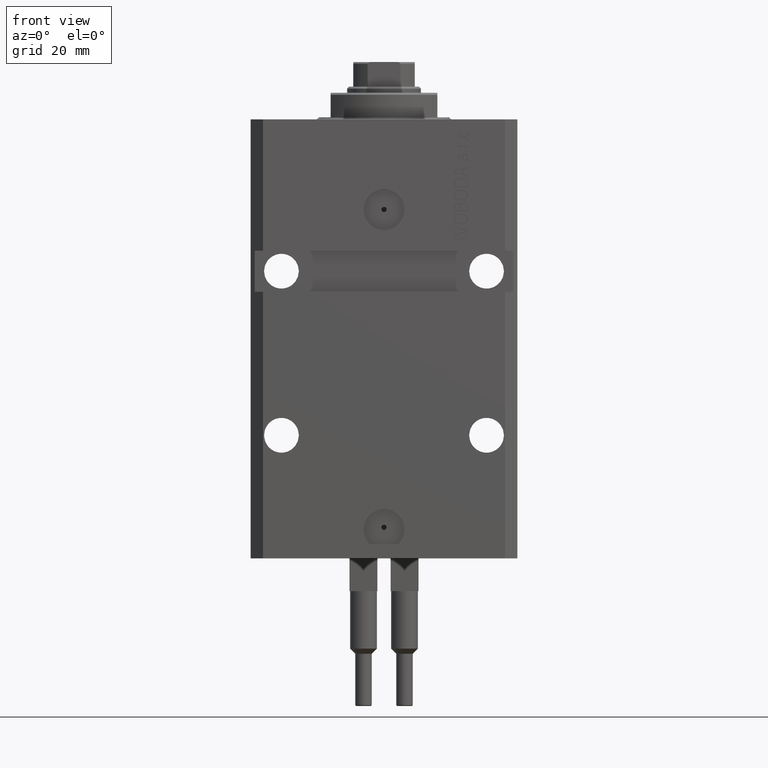
[diagram: clean part render]
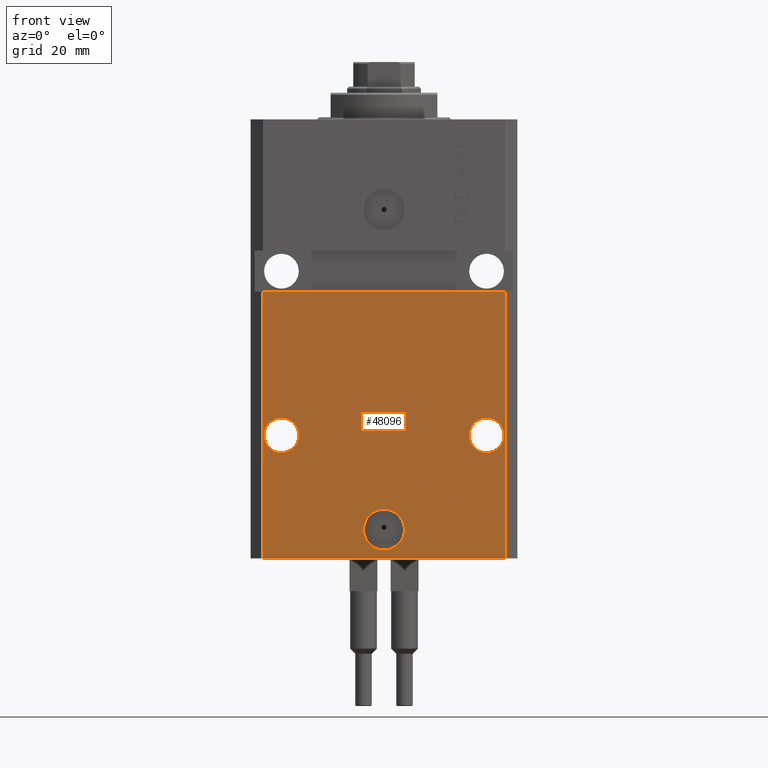
[diagram: same view with one face highlighted and labeled with its STEP entity id]
A machine part, front view. The second image highlights one B-rep face of the part: STEP entity #48096.
In plain terms, the highlighted planar face has unit normal (0, -1, 0).
Its self-contained STEP definition (entity closure, byte-faithful):
#447 = EDGE_CURVE ( 'NONE', #22001, #1635, #33648, .T. ) ;
#999 = VERTEX_POINT ( 'NONE', #27253 ) ;
#1531 = DIRECTION ( 'NONE',  ( 1.176083712526788232E-16, -1.000000000000000000, 0.000000000000000000 ) ) ;
#1635 = VERTEX_POINT ( 'NONE', #8917 ) ;
#1702 = LINE ( 'NONE', #17366, #33777 ) ;
#1738 = PLANE ( 'NONE',  #1904 ) ;
#1895 = DIRECTION ( 'NONE',  ( 1.176083712526788232E-16, -1.000000000000000000, 0.000000000000000000 ) ) ;
#1904 = AXIS2_PLACEMENT_3D ( 'NONE', #9576, #28193, #35590 ) ;
#2424 = DIRECTION ( 'NONE',  ( 1.176083712526788232E-16, -1.000000000000000000, 0.000000000000000000 ) ) ;
#3103 = DIRECTION ( 'NONE',  ( 1.176083712526788232E-16, -1.000000000000000000, 0.000000000000000000 ) ) ;
#4983 = EDGE_CURVE ( 'NONE', #1635, #22001, #7426, .T. ) ;
#5416 = AXIS2_PLACEMENT_3D ( 'NONE', #31194, #1531, #24068 ) ;
#5893 = FACE_BOUND ( 'NONE', #22588, .T. ) ;
#5985 = VECTOR ( 'NONE', #36451, 1000.000000000000000 ) ;
#7166 = CIRCLE ( 'NONE', #30643, 4.249999999989057642 ) ;
#7426 = CIRCLE ( 'NONE', #33265, 5.000000000000006217 ) ;
#8917 = CARTESIAN_POINT ( 'NONE',  ( -5.000000000000003553, -22.49999999999949551, -99.99999999999998579 ) ) ;
#9172 = CARTESIAN_POINT ( 'NONE',  ( -29.49999999999650413, -22.49999999999949907, -107.0000000000000000 ) ) ;
#9576 = CARTESIAN_POINT ( 'NONE',  ( -29.49999999999650413, -22.49999999999949907, -107.0000000000000000 ) ) ;
#10461 = CARTESIAN_POINT ( 'NONE',  ( 25.00000000000000711, -22.49999999999949196, -76.99999999999998579 ) ) ;
#11144 = CARTESIAN_POINT ( 'NONE',  ( -29.49999999999650413, -22.49999999999949907, -107.0000000000000000 ) ) ;
#11220 = VERTEX_POINT ( 'NONE', #43205 ) ;
#11774 = EDGE_CURVE ( 'NONE', #999, #26882, #46529, .T. ) ;
#11902 = CARTESIAN_POINT ( 'NONE',  ( 29.24999999998906475, -22.49999999999949196, -76.99999999999998579 ) ) ;
#12913 = CARTESIAN_POINT ( 'NONE',  ( 2.646188353185214061E-15, -22.49999999999949551, -99.99999999999998579 ) ) ;
#13194 = DIRECTION ( 'NONE',  ( 0.000000000000000000, 0.000000000000000000, 1.000000000000000000 ) ) ;
#13679 = DIRECTION ( 'NONE',  ( -1.000000000000000000, 0.000000000000000000, 0.000000000000000000 ) ) ;
#15475 = VERTEX_POINT ( 'NONE', #26048 ) ;
#15627 = ORIENTED_EDGE ( 'NONE', *, *, #447, .F. ) ;
#15835 = CARTESIAN_POINT ( 'NONE',  ( 5.000000000000008882, -22.49999999999949551, -99.99999999999998579 ) ) ;
#15860 = DIRECTION ( 'NONE',  ( 1.000000000000000000, 0.000000000000000000, 0.000000000000000000 ) ) ;
#16697 = CARTESIAN_POINT ( 'NONE',  ( -29.24999999997659472, -22.49999999999949907, -76.99999999999998579 ) ) ;
#17254 = VERTEX_POINT ( 'NONE', #11902 ) ;
#17366 = CARTESIAN_POINT ( 'NONE',  ( 29.49999999999650413, -22.49999999999949196, -107.0000000000000000 ) ) ;
#17433 = EDGE_CURVE ( 'NONE', #21618, #37465, #25364, .T. ) ;
#18482 = CARTESIAN_POINT ( 'NONE',  ( 2.646188353185214061E-15, -22.49999999999949551, -99.99999999999998579 ) ) ;
#18732 = VERTEX_POINT ( 'NONE', #16697 ) ;
#18916 = CARTESIAN_POINT ( 'NONE',  ( 29.49999999999650058, -22.49999999999949196, -41.99999999999998579 ) ) ;
#19428 = DIRECTION ( 'NONE',  ( 1.176083712526788232E-16, -1.000000000000000000, 0.000000000000000000 ) ) ;
#21618 = VERTEX_POINT ( 'NONE', #31219 ) ;
#22001 = VERTEX_POINT ( 'NONE', #15835 ) ;
#22588 = EDGE_LOOP ( 'NONE', ( #35951, #42549 ) ) ;
#22795 = EDGE_CURVE ( 'NONE', #37465, #26882, #1702, .T. ) ;
#22934 = EDGE_LOOP ( 'NONE', ( #37700, #31666 ) ) ;
#23805 = ORIENTED_EDGE ( 'NONE', *, *, #17433, .T. ) ;
#24068 = DIRECTION ( 'NONE',  ( 1.000000000000000000, 0.000000000000000000, 0.000000000000000000 ) ) ;
#25282 = CIRCLE ( 'NONE', #38613, 4.249999999976592058 ) ;
#25364 = LINE ( 'NONE', #11144, #46158 ) ;
#26048 = CARTESIAN_POINT ( 'NONE',  ( 20.75000000001094946, -22.49999999999949196, -76.99999999999998579 ) ) ;
#26560 = ORIENTED_EDGE ( 'NONE', *, *, #30708, .F. ) ;
#26882 = VERTEX_POINT ( 'NONE', #18916 ) ;
#27253 = CARTESIAN_POINT ( 'NONE',  ( -29.49999999999650413, -22.49999999999949907, -41.99999999999999289 ) ) ;
#27950 = FACE_BOUND ( 'NONE', #46814, .T. ) ;
#28083 = CARTESIAN_POINT ( 'NONE',  ( -32.49999999999650413, -22.49999999999949907, -41.99999999999999289 ) ) ;
#28193 = DIRECTION ( 'NONE',  ( 1.176083712526788232E-16, -1.000000000000000000, 0.000000000000000000 ) ) ;
#28683 = ORIENTED_EDGE ( 'NONE', *, *, #22795, .T. ) ;
#29090 = DIRECTION ( 'NONE',  ( 1.000000000000000000, 0.000000000000000000, 0.000000000000000000 ) ) ;
#29394 = EDGE_CURVE ( 'NONE', #15475, #17254, #37547, .T. ) ;
#30643 = AXIS2_PLACEMENT_3D ( 'NONE', #10461, #3103, #29090 ) ;
#30708 = EDGE_CURVE ( 'NONE', #21618, #999, #42791, .T. ) ;
#30722 = ORIENTED_EDGE ( 'NONE', *, *, #11774, .F. ) ;
#31170 = VECTOR ( 'NONE', #31238, 1000.000000000000000 ) ;
#31194 = CARTESIAN_POINT ( 'NONE',  ( 25.00000000000000711, -22.49999999999949196, -76.99999999999998579 ) ) ;
#31219 = CARTESIAN_POINT ( 'NONE',  ( -29.49999999999650413, -22.49999999999949907, -107.0000000000000000 ) ) ;
#31238 = DIRECTION ( 'NONE',  ( 0.000000000000000000, 0.000000000000000000, 1.000000000000000000 ) ) ;
#31666 = ORIENTED_EDGE ( 'NONE', *, *, #29394, .F. ) ;
#32740 = DIRECTION ( 'NONE',  ( 1.000000000000000000, 1.176083712526788232E-16, 0.000000000000000000 ) ) ;
#33265 = AXIS2_PLACEMENT_3D ( 'NONE', #18482, #19428, #41072 ) ;
#33564 = DIRECTION ( 'NONE',  ( -1.000000000000000000, 0.000000000000000000, 0.000000000000000000 ) ) ;
#33648 = CIRCLE ( 'NONE', #36009, 5.000000000000006217 ) ;
#33777 = VECTOR ( 'NONE', #13194, 1000.000000000000000 ) ;
#35590 = DIRECTION ( 'NONE',  ( 1.000000000000000000, 1.176083712526788232E-16, 0.000000000000000000 ) ) ;
#35951 = ORIENTED_EDGE ( 'NONE', *, *, #40618, .F. ) ;
#35988 = CARTESIAN_POINT ( 'NONE',  ( 29.49999999999650413, -22.49999999999949196, -107.0000000000000000 ) ) ;
#36009 = AXIS2_PLACEMENT_3D ( 'NONE', #12913, #1895, #15860 ) ;
#36034 = CARTESIAN_POINT ( 'NONE',  ( -25.00000000000000000, -22.49999999999949907, -76.99999999999998579 ) ) ;
#36451 = DIRECTION ( 'NONE',  ( 1.000000000000000000, 1.067522139062765303E-16, 1.067522139062765303E-16 ) ) ;
#36957 = AXIS2_PLACEMENT_3D ( 'NONE', #45109, #45339, #33564 ) ;
#37242 = EDGE_CURVE ( 'NONE', #18732, #11220, #40067, .T. ) ;
#37465 = VERTEX_POINT ( 'NONE', #35988 ) ;
#37517 = EDGE_CURVE ( 'NONE', #17254, #15475, #7166, .T. ) ;
#37547 = CIRCLE ( 'NONE', #5416, 4.249999999989057642 ) ;
#37700 = ORIENTED_EDGE ( 'NONE', *, *, #37517, .F. ) ;
#38529 = EDGE_LOOP ( 'NONE', ( #30722, #26560, #23805, #28683 ) ) ;
#38613 = AXIS2_PLACEMENT_3D ( 'NONE', #36034, #2424, #13679 ) ;
#39513 = FACE_BOUND ( 'NONE', #22934, .T. ) ;
#40067 = CIRCLE ( 'NONE', #36957, 4.249999999976592058 ) ;
#40431 = ORIENTED_EDGE ( 'NONE', *, *, #4983, .F. ) ;
#40618 = EDGE_CURVE ( 'NONE', #11220, #18732, #25282, .T. ) ;
#41072 = DIRECTION ( 'NONE',  ( 1.000000000000000000, 0.000000000000000000, 0.000000000000000000 ) ) ;
#42549 = ORIENTED_EDGE ( 'NONE', *, *, #37242, .F. ) ;
#42791 = LINE ( 'NONE', #9172, #31170 ) ;
#43205 = CARTESIAN_POINT ( 'NONE',  ( -20.75000000002340883, -22.49999999999949907, -76.99999999999998579 ) ) ;
#45109 = CARTESIAN_POINT ( 'NONE',  ( -25.00000000000000000, -22.49999999999949907, -76.99999999999998579 ) ) ;
#45339 = DIRECTION ( 'NONE',  ( 1.176083712526788232E-16, -1.000000000000000000, 0.000000000000000000 ) ) ;
#46158 = VECTOR ( 'NONE', #32740, 1000.000000000000000 ) ;
#46529 = LINE ( 'NONE', #28083, #5985 ) ;
#46814 = EDGE_LOOP ( 'NONE', ( #15627, #40431 ) ) ;
#46878 = FACE_OUTER_BOUND ( 'NONE', #38529, .T. ) ;
#48096 = ADVANCED_FACE ( 'NONE', ( #27950, #39513, #5893, #46878 ), #1738, .T. ) ;